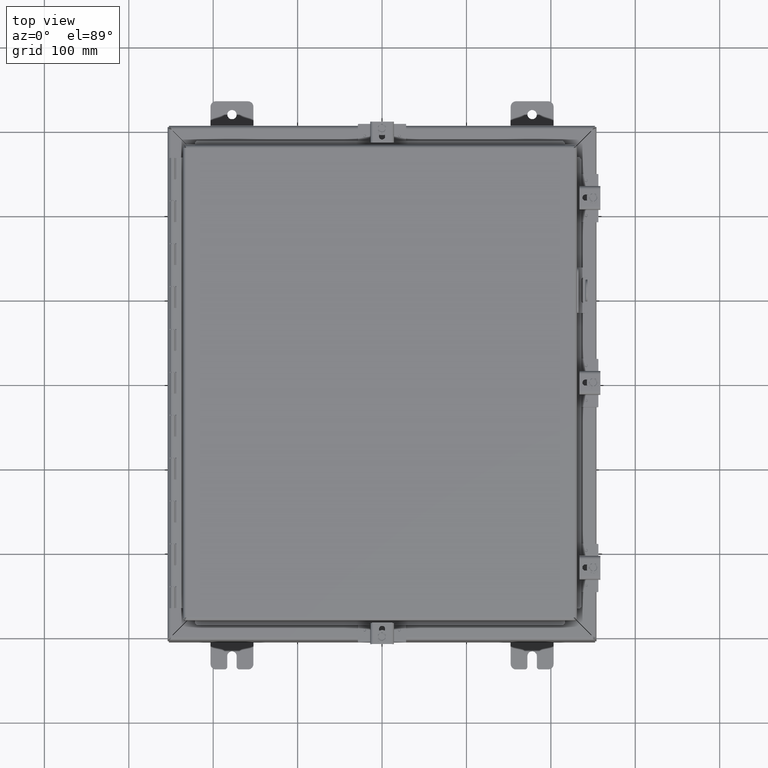
[diagram: clean part render]
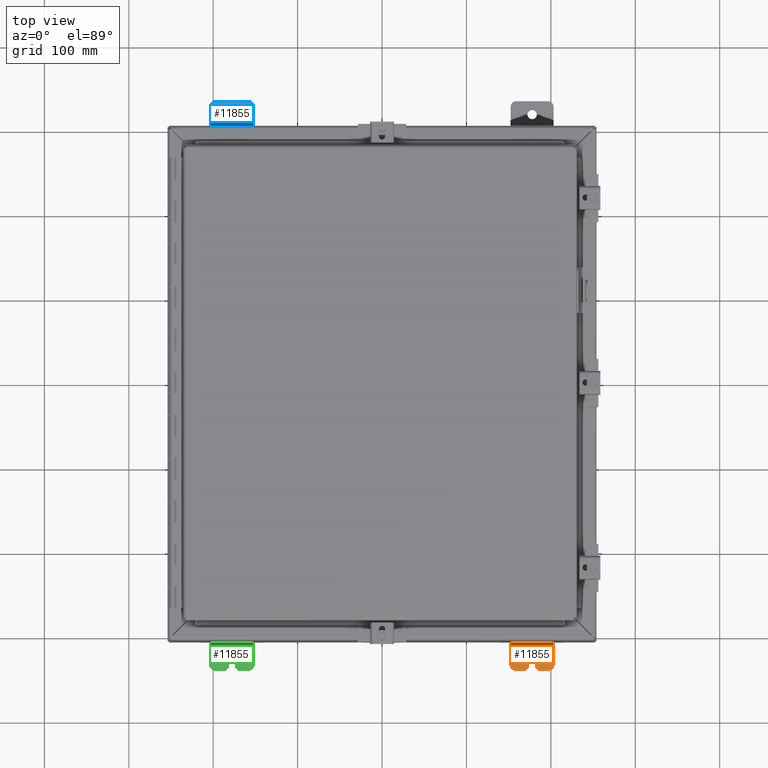
[diagram: same view with three faces highlighted in distinct colors, each labeled with its STEP entity id]
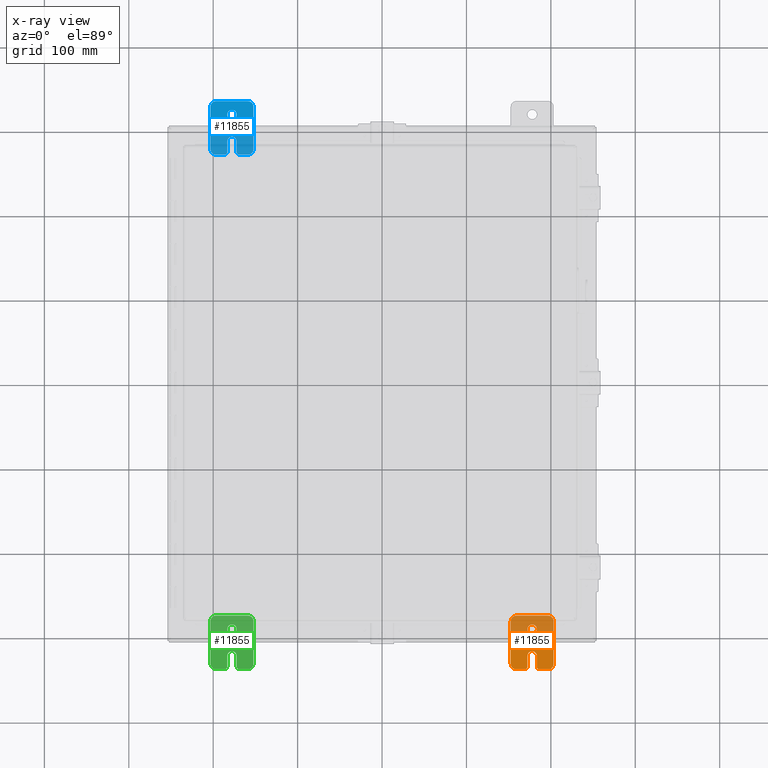
[diagram: x-ray of the same camera — body ghosted, the three highlighted faces saturated]
A machine part, top view with three faces highlighted in distinct colors.
The next image is the same camera in x-ray (body ghosted, the three faces saturated) — at least one of them is partly hidden behind the body in this view.
Their STEP definitions:

[orange] entity #11855 — the highlighted planar face has unit normal (0, 0, 1).
#1095=FACE_BOUND('',#2211,.T.);
#1151=PLANE('',#12562);
#1521=FACE_OUTER_BOUND('',#2210,.T.);
#2210=EDGE_LOOP('',(#8319,#8320,#8321,#8322,#8323,#8324,#8325,#8326,#8327,
#8328,#8329,#8330,#8331,#8332));
#2211=EDGE_LOOP('',(#8333));
#2954=LINE('',#16801,#4033);
#2957=LINE('',#16807,#4036);
#2958=LINE('',#16811,#4037);
#2959=LINE('',#16815,#4038);
#2960=LINE('',#16819,#4039);
#2961=LINE('',#16823,#4040);
#2962=LINE('',#16827,#4041);
#4033=VECTOR('',#13620,0.5);
#4036=VECTOR('',#13625,0.406);
#4037=VECTOR('',#13628,2.);
#4038=VECTOR('',#13631,1.5);
#4039=VECTOR('',#13634,2.);
#4040=VECTOR('',#13637,0.406);
#4041=VECTOR('',#13640,0.5);
#5111=CIRCLE('',#12560,0.125);
#5112=CIRCLE('',#12563,0.25);
#5113=CIRCLE('',#12564,0.25);
#5114=CIRCLE('',#12565,0.25);
#5115=CIRCLE('',#12566,0.25);
#5116=CIRCLE('',#12567,0.125);
#5117=CIRCLE('',#12568,0.219);
#5118=CIRCLE('',#12569,0.219);
#5501=VERTEX_POINT('',#16794);
#5502=VERTEX_POINT('',#16796);
#5503=VERTEX_POINT('',#16800);
#5505=VERTEX_POINT('',#16806);
#5506=VERTEX_POINT('',#16808);
#5507=VERTEX_POINT('',#16810);
#5508=VERTEX_POINT('',#16812);
#5509=VERTEX_POINT('',#16814);
#5510=VERTEX_POINT('',#16816);
#5511=VERTEX_POINT('',#16818);
#5512=VERTEX_POINT('',#16820);
#5513=VERTEX_POINT('',#16822);
#5514=VERTEX_POINT('',#16824);
#5515=VERTEX_POINT('',#16826);
#5516=VERTEX_POINT('',#16829);
#6605=EDGE_CURVE('',#5501,#5502,#5111,.T.);
#6607=EDGE_CURVE('',#5503,#5502,#2954,.T.);
#6610=EDGE_CURVE('',#5505,#5501,#2957,.T.);
#6611=EDGE_CURVE('',#5506,#5505,#5112,.T.);
#6612=EDGE_CURVE('',#5507,#5506,#2958,.T.);
#6613=EDGE_CURVE('',#5508,#5507,#5113,.T.);
#6614=EDGE_CURVE('',#5509,#5508,#2959,.T.);
#6615=EDGE_CURVE('',#5510,#5509,#5114,.T.);
#6616=EDGE_CURVE('',#5511,#5510,#2960,.T.);
#6617=EDGE_CURVE('',#5512,#5511,#5115,.T.);
#6618=EDGE_CURVE('',#5513,#5512,#2961,.T.);
#6619=EDGE_CURVE('',#5514,#5513,#5116,.T.);
#6620=EDGE_CURVE('',#5514,#5515,#2962,.T.);
#6621=EDGE_CURVE('',#5515,#5503,#5117,.T.);
#6622=EDGE_CURVE('',#5516,#5516,#5118,.T.);
#8319=ORIENTED_EDGE('',*,*,#6605,.F.);
#8320=ORIENTED_EDGE('',*,*,#6610,.F.);
#8321=ORIENTED_EDGE('',*,*,#6611,.F.);
#8322=ORIENTED_EDGE('',*,*,#6612,.F.);
#8323=ORIENTED_EDGE('',*,*,#6613,.F.);
#8324=ORIENTED_EDGE('',*,*,#6614,.F.);
#8325=ORIENTED_EDGE('',*,*,#6615,.F.);
#8326=ORIENTED_EDGE('',*,*,#6616,.F.);
#8327=ORIENTED_EDGE('',*,*,#6617,.F.);
#8328=ORIENTED_EDGE('',*,*,#6618,.F.);
#8329=ORIENTED_EDGE('',*,*,#6619,.F.);
#8330=ORIENTED_EDGE('',*,*,#6620,.T.);
#8331=ORIENTED_EDGE('',*,*,#6621,.T.);
#8332=ORIENTED_EDGE('',*,*,#6607,.T.);
#8333=ORIENTED_EDGE('',*,*,#6622,.T.);
#11855=ADVANCED_FACE('',(#1521,#1095),#1151,.T.);
#12560=AXIS2_PLACEMENT_3D('',#16797,#13615,#13616);
#12562=AXIS2_PLACEMENT_3D('',#16805,#13623,#13624);
#12563=AXIS2_PLACEMENT_3D('',#16809,#13626,#13627);
#12564=AXIS2_PLACEMENT_3D('',#16813,#13629,#13630);
#12565=AXIS2_PLACEMENT_3D('',#16817,#13632,#13633);
#12566=AXIS2_PLACEMENT_3D('',#16821,#13635,#13636);
#12567=AXIS2_PLACEMENT_3D('',#16825,#13638,#13639);
#12568=AXIS2_PLACEMENT_3D('',#16828,#13641,#13642);
#12569=AXIS2_PLACEMENT_3D('',#16830,#13643,#13644);
#13615=DIRECTION('center_axis',(0.,0.,-1.));
#13616=DIRECTION('ref_axis',(-0.707106781186547,-0.707106781186548,0.));
#13620=DIRECTION('',(0.,-1.,0.));
#13623=DIRECTION('center_axis',(0.,0.,1.));
#13624=DIRECTION('ref_axis',(1.,0.,0.));
#13625=DIRECTION('',(-1.,0.,0.));
#13626=DIRECTION('center_axis',(0.,0.,-1.));
#13627=DIRECTION('ref_axis',(0.707106781186548,-0.707106781186548,0.));
#13628=DIRECTION('',(0.,-1.,0.));
#13629=DIRECTION('center_axis',(0.,0.,-1.));
#13630=DIRECTION('ref_axis',(0.707106781186548,0.707106781186548,0.));
#13631=DIRECTION('',(1.,0.,0.));
#13632=DIRECTION('center_axis',(0.,0.,-1.));
#13633=DIRECTION('ref_axis',(-0.707106781186548,0.707106781186547,0.));
#13634=DIRECTION('',(-3.06161699786838E-16,1.,0.));
#13635=DIRECTION('center_axis',(0.,0.,-1.));
#13636=DIRECTION('ref_axis',(-0.707106781186547,-0.707106781186548,0.));
#13637=DIRECTION('',(-1.,0.,0.));
#13638=DIRECTION('center_axis',(0.,0.,-1.));
#13639=DIRECTION('ref_axis',(0.707106781186548,-0.707106781186548,0.));
#13640=DIRECTION('',(0.,1.,0.));
#13641=DIRECTION('center_axis',(0.,0.,-1.));
#13642=DIRECTION('ref_axis',(1.,0.,0.));
#13643=DIRECTION('center_axis',(0.,0.,-1.));
#13644=DIRECTION('ref_axis',(-1.,0.,0.));
#16794=CARTESIAN_POINT('',(1.344,0.,0.125));
#16796=CARTESIAN_POINT('',(1.219,0.125,0.125));
#16797=CARTESIAN_POINT('Origin',(1.344,0.125,0.125));
#16800=CARTESIAN_POINT('',(1.219,0.625,0.125));
#16801=CARTESIAN_POINT('',(1.219,0.625,0.125));
#16805=CARTESIAN_POINT('Origin',(1.,1.25,0.125));
#16806=CARTESIAN_POINT('',(1.75,0.,0.125));
#16807=CARTESIAN_POINT('',(0.,0.,0.125));
#16808=CARTESIAN_POINT('',(2.,0.25,0.125));
#16809=CARTESIAN_POINT('Origin',(1.75,0.25,0.125));
#16810=CARTESIAN_POINT('',(2.,2.25,0.125));
#16811=CARTESIAN_POINT('',(2.,0.,0.125));
#16812=CARTESIAN_POINT('',(1.75,2.5,0.125));
#16813=CARTESIAN_POINT('Origin',(1.75,2.25,0.125));
#16814=CARTESIAN_POINT('',(0.249999999999999,2.5,0.125));
#16815=CARTESIAN_POINT('',(2.,2.5,0.125));
#16816=CARTESIAN_POINT('',(-6.88863824520386E-16,2.25,0.125));
#16817=CARTESIAN_POINT('Origin',(0.249999999999999,2.25,0.125));
#16818=CARTESIAN_POINT('',(-7.65404249467095E-17,0.25,0.125));
#16819=CARTESIAN_POINT('',(-7.65404249467096E-16,2.5,0.125));
#16820=CARTESIAN_POINT('',(0.25,0.,0.125));
#16821=CARTESIAN_POINT('Origin',(0.25,0.25,0.125));
#16822=CARTESIAN_POINT('',(0.656,0.,0.125));
#16823=CARTESIAN_POINT('',(0.,0.,0.125));
#16824=CARTESIAN_POINT('',(0.780999999999999,0.125,0.125));
#16825=CARTESIAN_POINT('Origin',(0.656,0.125,0.125));
#16826=CARTESIAN_POINT('',(0.781,0.625,0.125));
#16827=CARTESIAN_POINT('',(0.780999999999999,0.9375,0.125));
#16828=CARTESIAN_POINT('Origin',(1.,0.625,0.125));
#16829=CARTESIAN_POINT('',(1.219,1.875,0.125));
#16830=CARTESIAN_POINT('Origin',(1.,1.875,0.125));

[blue] entity #11855 — the highlighted planar face has unit normal (-0, -0, 1).
#1095=FACE_BOUND('',#2211,.T.);
#1151=PLANE('',#12562);
#1521=FACE_OUTER_BOUND('',#2210,.T.);
#2210=EDGE_LOOP('',(#8319,#8320,#8321,#8322,#8323,#8324,#8325,#8326,#8327,
#8328,#8329,#8330,#8331,#8332));
#2211=EDGE_LOOP('',(#8333));
#2954=LINE('',#16801,#4033);
#2957=LINE('',#16807,#4036);
#2958=LINE('',#16811,#4037);
#2959=LINE('',#16815,#4038);
#2960=LINE('',#16819,#4039);
#2961=LINE('',#16823,#4040);
#2962=LINE('',#16827,#4041);
#4033=VECTOR('',#13620,0.5);
#4036=VECTOR('',#13625,0.406);
#4037=VECTOR('',#13628,2.);
#4038=VECTOR('',#13631,1.5);
#4039=VECTOR('',#13634,2.);
#4040=VECTOR('',#13637,0.406);
#4041=VECTOR('',#13640,0.5);
#5111=CIRCLE('',#12560,0.125);
#5112=CIRCLE('',#12563,0.25);
#5113=CIRCLE('',#12564,0.25);
#5114=CIRCLE('',#12565,0.25);
#5115=CIRCLE('',#12566,0.25);
#5116=CIRCLE('',#12567,0.125);
#5117=CIRCLE('',#12568,0.219);
#5118=CIRCLE('',#12569,0.219);
#5501=VERTEX_POINT('',#16794);
#5502=VERTEX_POINT('',#16796);
#5503=VERTEX_POINT('',#16800);
#5505=VERTEX_POINT('',#16806);
#5506=VERTEX_POINT('',#16808);
#5507=VERTEX_POINT('',#16810);
#5508=VERTEX_POINT('',#16812);
#5509=VERTEX_POINT('',#16814);
#5510=VERTEX_POINT('',#16816);
#5511=VERTEX_POINT('',#16818);
#5512=VERTEX_POINT('',#16820);
#5513=VERTEX_POINT('',#16822);
#5514=VERTEX_POINT('',#16824);
#5515=VERTEX_POINT('',#16826);
#5516=VERTEX_POINT('',#16829);
#6605=EDGE_CURVE('',#5501,#5502,#5111,.T.);
#6607=EDGE_CURVE('',#5503,#5502,#2954,.T.);
#6610=EDGE_CURVE('',#5505,#5501,#2957,.T.);
#6611=EDGE_CURVE('',#5506,#5505,#5112,.T.);
#6612=EDGE_CURVE('',#5507,#5506,#2958,.T.);
#6613=EDGE_CURVE('',#5508,#5507,#5113,.T.);
#6614=EDGE_CURVE('',#5509,#5508,#2959,.T.);
#6615=EDGE_CURVE('',#5510,#5509,#5114,.T.);
#6616=EDGE_CURVE('',#5511,#5510,#2960,.T.);
#6617=EDGE_CURVE('',#5512,#5511,#5115,.T.);
#6618=EDGE_CURVE('',#5513,#5512,#2961,.T.);
#6619=EDGE_CURVE('',#5514,#5513,#5116,.T.);
#6620=EDGE_CURVE('',#5514,#5515,#2962,.T.);
#6621=EDGE_CURVE('',#5515,#5503,#5117,.T.);
#6622=EDGE_CURVE('',#5516,#5516,#5118,.T.);
#8319=ORIENTED_EDGE('',*,*,#6605,.F.);
#8320=ORIENTED_EDGE('',*,*,#6610,.F.);
#8321=ORIENTED_EDGE('',*,*,#6611,.F.);
#8322=ORIENTED_EDGE('',*,*,#6612,.F.);
#8323=ORIENTED_EDGE('',*,*,#6613,.F.);
#8324=ORIENTED_EDGE('',*,*,#6614,.F.);
#8325=ORIENTED_EDGE('',*,*,#6615,.F.);
#8326=ORIENTED_EDGE('',*,*,#6616,.F.);
#8327=ORIENTED_EDGE('',*,*,#6617,.F.);
#8328=ORIENTED_EDGE('',*,*,#6618,.F.);
#8329=ORIENTED_EDGE('',*,*,#6619,.F.);
#8330=ORIENTED_EDGE('',*,*,#6620,.T.);
#8331=ORIENTED_EDGE('',*,*,#6621,.T.);
#8332=ORIENTED_EDGE('',*,*,#6607,.T.);
#8333=ORIENTED_EDGE('',*,*,#6622,.T.);
#11855=ADVANCED_FACE('',(#1521,#1095),#1151,.T.);
#12560=AXIS2_PLACEMENT_3D('',#16797,#13615,#13616);
#12562=AXIS2_PLACEMENT_3D('',#16805,#13623,#13624);
#12563=AXIS2_PLACEMENT_3D('',#16809,#13626,#13627);
#12564=AXIS2_PLACEMENT_3D('',#16813,#13629,#13630);
#12565=AXIS2_PLACEMENT_3D('',#16817,#13632,#13633);
#12566=AXIS2_PLACEMENT_3D('',#16821,#13635,#13636);
#12567=AXIS2_PLACEMENT_3D('',#16825,#13638,#13639);
#12568=AXIS2_PLACEMENT_3D('',#16828,#13641,#13642);
#12569=AXIS2_PLACEMENT_3D('',#16830,#13643,#13644);
#13615=DIRECTION('center_axis',(0.,0.,-1.));
#13616=DIRECTION('ref_axis',(-0.707106781186547,-0.707106781186548,0.));
#13620=DIRECTION('',(0.,-1.,0.));
#13623=DIRECTION('center_axis',(0.,0.,1.));
#13624=DIRECTION('ref_axis',(1.,0.,0.));
#13625=DIRECTION('',(-1.,0.,0.));
#13626=DIRECTION('center_axis',(0.,0.,-1.));
#13627=DIRECTION('ref_axis',(0.707106781186548,-0.707106781186548,0.));
#13628=DIRECTION('',(0.,-1.,0.));
#13629=DIRECTION('center_axis',(0.,0.,-1.));
#13630=DIRECTION('ref_axis',(0.707106781186548,0.707106781186548,0.));
#13631=DIRECTION('',(1.,0.,0.));
#13632=DIRECTION('center_axis',(0.,0.,-1.));
#13633=DIRECTION('ref_axis',(-0.707106781186548,0.707106781186547,0.));
#13634=DIRECTION('',(-3.06161699786838E-16,1.,0.));
#13635=DIRECTION('center_axis',(0.,0.,-1.));
#13636=DIRECTION('ref_axis',(-0.707106781186547,-0.707106781186548,0.));
#13637=DIRECTION('',(-1.,0.,0.));
#13638=DIRECTION('center_axis',(0.,0.,-1.));
#13639=DIRECTION('ref_axis',(0.707106781186548,-0.707106781186548,0.));
#13640=DIRECTION('',(0.,1.,0.));
#13641=DIRECTION('center_axis',(0.,0.,-1.));
#13642=DIRECTION('ref_axis',(1.,0.,0.));
#13643=DIRECTION('center_axis',(0.,0.,-1.));
#13644=DIRECTION('ref_axis',(-1.,0.,0.));
#16794=CARTESIAN_POINT('',(1.344,0.,0.125));
#16796=CARTESIAN_POINT('',(1.219,0.125,0.125));
#16797=CARTESIAN_POINT('Origin',(1.344,0.125,0.125));
#16800=CARTESIAN_POINT('',(1.219,0.625,0.125));
#16801=CARTESIAN_POINT('',(1.219,0.625,0.125));
#16805=CARTESIAN_POINT('Origin',(1.,1.25,0.125));
#16806=CARTESIAN_POINT('',(1.75,0.,0.125));
#16807=CARTESIAN_POINT('',(0.,0.,0.125));
#16808=CARTESIAN_POINT('',(2.,0.25,0.125));
#16809=CARTESIAN_POINT('Origin',(1.75,0.25,0.125));
#16810=CARTESIAN_POINT('',(2.,2.25,0.125));
#16811=CARTESIAN_POINT('',(2.,0.,0.125));
#16812=CARTESIAN_POINT('',(1.75,2.5,0.125));
#16813=CARTESIAN_POINT('Origin',(1.75,2.25,0.125));
#16814=CARTESIAN_POINT('',(0.249999999999999,2.5,0.125));
#16815=CARTESIAN_POINT('',(2.,2.5,0.125));
#16816=CARTESIAN_POINT('',(-6.88863824520386E-16,2.25,0.125));
#16817=CARTESIAN_POINT('Origin',(0.249999999999999,2.25,0.125));
#16818=CARTESIAN_POINT('',(-7.65404249467095E-17,0.25,0.125));
#16819=CARTESIAN_POINT('',(-7.65404249467096E-16,2.5,0.125));
#16820=CARTESIAN_POINT('',(0.25,0.,0.125));
#16821=CARTESIAN_POINT('Origin',(0.25,0.25,0.125));
#16822=CARTESIAN_POINT('',(0.656,0.,0.125));
#16823=CARTESIAN_POINT('',(0.,0.,0.125));
#16824=CARTESIAN_POINT('',(0.780999999999999,0.125,0.125));
#16825=CARTESIAN_POINT('Origin',(0.656,0.125,0.125));
#16826=CARTESIAN_POINT('',(0.781,0.625,0.125));
#16827=CARTESIAN_POINT('',(0.780999999999999,0.9375,0.125));
#16828=CARTESIAN_POINT('Origin',(1.,0.625,0.125));
#16829=CARTESIAN_POINT('',(1.219,1.875,0.125));
#16830=CARTESIAN_POINT('Origin',(1.,1.875,0.125));

[green] entity #11855 — the highlighted planar face has unit normal (-0, -0, 1).
#1095=FACE_BOUND('',#2211,.T.);
#1151=PLANE('',#12562);
#1521=FACE_OUTER_BOUND('',#2210,.T.);
#2210=EDGE_LOOP('',(#8319,#8320,#8321,#8322,#8323,#8324,#8325,#8326,#8327,
#8328,#8329,#8330,#8331,#8332));
#2211=EDGE_LOOP('',(#8333));
#2954=LINE('',#16801,#4033);
#2957=LINE('',#16807,#4036);
#2958=LINE('',#16811,#4037);
#2959=LINE('',#16815,#4038);
#2960=LINE('',#16819,#4039);
#2961=LINE('',#16823,#4040);
#2962=LINE('',#16827,#4041);
#4033=VECTOR('',#13620,0.5);
#4036=VECTOR('',#13625,0.406);
#4037=VECTOR('',#13628,2.);
#4038=VECTOR('',#13631,1.5);
#4039=VECTOR('',#13634,2.);
#4040=VECTOR('',#13637,0.406);
#4041=VECTOR('',#13640,0.5);
#5111=CIRCLE('',#12560,0.125);
#5112=CIRCLE('',#12563,0.25);
#5113=CIRCLE('',#12564,0.25);
#5114=CIRCLE('',#12565,0.25);
#5115=CIRCLE('',#12566,0.25);
#5116=CIRCLE('',#12567,0.125);
#5117=CIRCLE('',#12568,0.219);
#5118=CIRCLE('',#12569,0.219);
#5501=VERTEX_POINT('',#16794);
#5502=VERTEX_POINT('',#16796);
#5503=VERTEX_POINT('',#16800);
#5505=VERTEX_POINT('',#16806);
#5506=VERTEX_POINT('',#16808);
#5507=VERTEX_POINT('',#16810);
#5508=VERTEX_POINT('',#16812);
#5509=VERTEX_POINT('',#16814);
#5510=VERTEX_POINT('',#16816);
#5511=VERTEX_POINT('',#16818);
#5512=VERTEX_POINT('',#16820);
#5513=VERTEX_POINT('',#16822);
#5514=VERTEX_POINT('',#16824);
#5515=VERTEX_POINT('',#16826);
#5516=VERTEX_POINT('',#16829);
#6605=EDGE_CURVE('',#5501,#5502,#5111,.T.);
#6607=EDGE_CURVE('',#5503,#5502,#2954,.T.);
#6610=EDGE_CURVE('',#5505,#5501,#2957,.T.);
#6611=EDGE_CURVE('',#5506,#5505,#5112,.T.);
#6612=EDGE_CURVE('',#5507,#5506,#2958,.T.);
#6613=EDGE_CURVE('',#5508,#5507,#5113,.T.);
#6614=EDGE_CURVE('',#5509,#5508,#2959,.T.);
#6615=EDGE_CURVE('',#5510,#5509,#5114,.T.);
#6616=EDGE_CURVE('',#5511,#5510,#2960,.T.);
#6617=EDGE_CURVE('',#5512,#5511,#5115,.T.);
#6618=EDGE_CURVE('',#5513,#5512,#2961,.T.);
#6619=EDGE_CURVE('',#5514,#5513,#5116,.T.);
#6620=EDGE_CURVE('',#5514,#5515,#2962,.T.);
#6621=EDGE_CURVE('',#5515,#5503,#5117,.T.);
#6622=EDGE_CURVE('',#5516,#5516,#5118,.T.);
#8319=ORIENTED_EDGE('',*,*,#6605,.F.);
#8320=ORIENTED_EDGE('',*,*,#6610,.F.);
#8321=ORIENTED_EDGE('',*,*,#6611,.F.);
#8322=ORIENTED_EDGE('',*,*,#6612,.F.);
#8323=ORIENTED_EDGE('',*,*,#6613,.F.);
#8324=ORIENTED_EDGE('',*,*,#6614,.F.);
#8325=ORIENTED_EDGE('',*,*,#6615,.F.);
#8326=ORIENTED_EDGE('',*,*,#6616,.F.);
#8327=ORIENTED_EDGE('',*,*,#6617,.F.);
#8328=ORIENTED_EDGE('',*,*,#6618,.F.);
#8329=ORIENTED_EDGE('',*,*,#6619,.F.);
#8330=ORIENTED_EDGE('',*,*,#6620,.T.);
#8331=ORIENTED_EDGE('',*,*,#6621,.T.);
#8332=ORIENTED_EDGE('',*,*,#6607,.T.);
#8333=ORIENTED_EDGE('',*,*,#6622,.T.);
#11855=ADVANCED_FACE('',(#1521,#1095),#1151,.T.);
#12560=AXIS2_PLACEMENT_3D('',#16797,#13615,#13616);
#12562=AXIS2_PLACEMENT_3D('',#16805,#13623,#13624);
#12563=AXIS2_PLACEMENT_3D('',#16809,#13626,#13627);
#12564=AXIS2_PLACEMENT_3D('',#16813,#13629,#13630);
#12565=AXIS2_PLACEMENT_3D('',#16817,#13632,#13633);
#12566=AXIS2_PLACEMENT_3D('',#16821,#13635,#13636);
#12567=AXIS2_PLACEMENT_3D('',#16825,#13638,#13639);
#12568=AXIS2_PLACEMENT_3D('',#16828,#13641,#13642);
#12569=AXIS2_PLACEMENT_3D('',#16830,#13643,#13644);
#13615=DIRECTION('center_axis',(0.,0.,-1.));
#13616=DIRECTION('ref_axis',(-0.707106781186547,-0.707106781186548,0.));
#13620=DIRECTION('',(0.,-1.,0.));
#13623=DIRECTION('center_axis',(0.,0.,1.));
#13624=DIRECTION('ref_axis',(1.,0.,0.));
#13625=DIRECTION('',(-1.,0.,0.));
#13626=DIRECTION('center_axis',(0.,0.,-1.));
#13627=DIRECTION('ref_axis',(0.707106781186548,-0.707106781186548,0.));
#13628=DIRECTION('',(0.,-1.,0.));
#13629=DIRECTION('center_axis',(0.,0.,-1.));
#13630=DIRECTION('ref_axis',(0.707106781186548,0.707106781186548,0.));
#13631=DIRECTION('',(1.,0.,0.));
#13632=DIRECTION('center_axis',(0.,0.,-1.));
#13633=DIRECTION('ref_axis',(-0.707106781186548,0.707106781186547,0.));
#13634=DIRECTION('',(-3.06161699786838E-16,1.,0.));
#13635=DIRECTION('center_axis',(0.,0.,-1.));
#13636=DIRECTION('ref_axis',(-0.707106781186547,-0.707106781186548,0.));
#13637=DIRECTION('',(-1.,0.,0.));
#13638=DIRECTION('center_axis',(0.,0.,-1.));
#13639=DIRECTION('ref_axis',(0.707106781186548,-0.707106781186548,0.));
#13640=DIRECTION('',(0.,1.,0.));
#13641=DIRECTION('center_axis',(0.,0.,-1.));
#13642=DIRECTION('ref_axis',(1.,0.,0.));
#13643=DIRECTION('center_axis',(0.,0.,-1.));
#13644=DIRECTION('ref_axis',(-1.,0.,0.));
#16794=CARTESIAN_POINT('',(1.344,0.,0.125));
#16796=CARTESIAN_POINT('',(1.219,0.125,0.125));
#16797=CARTESIAN_POINT('Origin',(1.344,0.125,0.125));
#16800=CARTESIAN_POINT('',(1.219,0.625,0.125));
#16801=CARTESIAN_POINT('',(1.219,0.625,0.125));
#16805=CARTESIAN_POINT('Origin',(1.,1.25,0.125));
#16806=CARTESIAN_POINT('',(1.75,0.,0.125));
#16807=CARTESIAN_POINT('',(0.,0.,0.125));
#16808=CARTESIAN_POINT('',(2.,0.25,0.125));
#16809=CARTESIAN_POINT('Origin',(1.75,0.25,0.125));
#16810=CARTESIAN_POINT('',(2.,2.25,0.125));
#16811=CARTESIAN_POINT('',(2.,0.,0.125));
#16812=CARTESIAN_POINT('',(1.75,2.5,0.125));
#16813=CARTESIAN_POINT('Origin',(1.75,2.25,0.125));
#16814=CARTESIAN_POINT('',(0.249999999999999,2.5,0.125));
#16815=CARTESIAN_POINT('',(2.,2.5,0.125));
#16816=CARTESIAN_POINT('',(-6.88863824520386E-16,2.25,0.125));
#16817=CARTESIAN_POINT('Origin',(0.249999999999999,2.25,0.125));
#16818=CARTESIAN_POINT('',(-7.65404249467095E-17,0.25,0.125));
#16819=CARTESIAN_POINT('',(-7.65404249467096E-16,2.5,0.125));
#16820=CARTESIAN_POINT('',(0.25,0.,0.125));
#16821=CARTESIAN_POINT('Origin',(0.25,0.25,0.125));
#16822=CARTESIAN_POINT('',(0.656,0.,0.125));
#16823=CARTESIAN_POINT('',(0.,0.,0.125));
#16824=CARTESIAN_POINT('',(0.780999999999999,0.125,0.125));
#16825=CARTESIAN_POINT('Origin',(0.656,0.125,0.125));
#16826=CARTESIAN_POINT('',(0.781,0.625,0.125));
#16827=CARTESIAN_POINT('',(0.780999999999999,0.9375,0.125));
#16828=CARTESIAN_POINT('Origin',(1.,0.625,0.125));
#16829=CARTESIAN_POINT('',(1.219,1.875,0.125));
#16830=CARTESIAN_POINT('Origin',(1.,1.875,0.125));